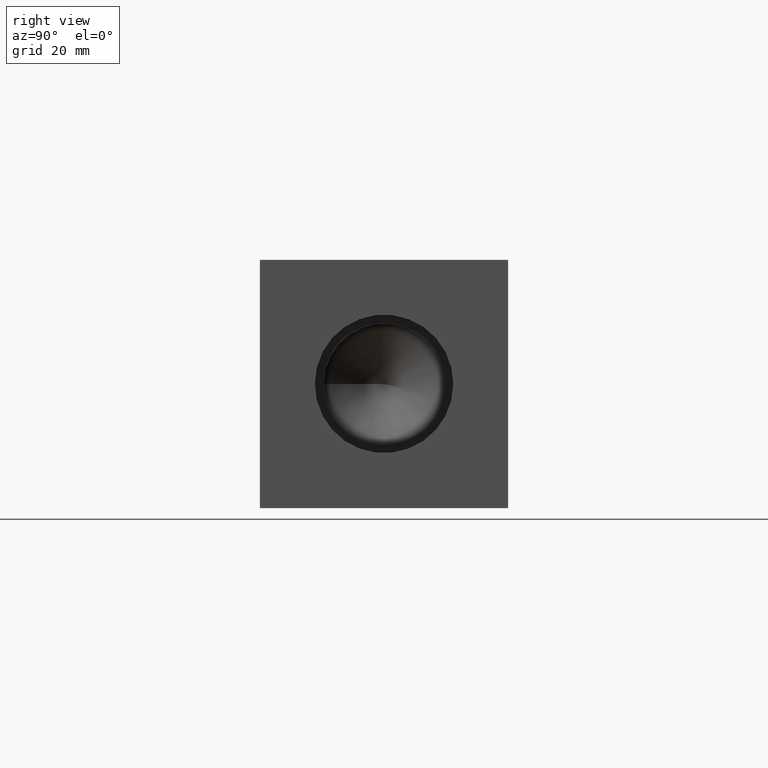
[diagram: clean part render]
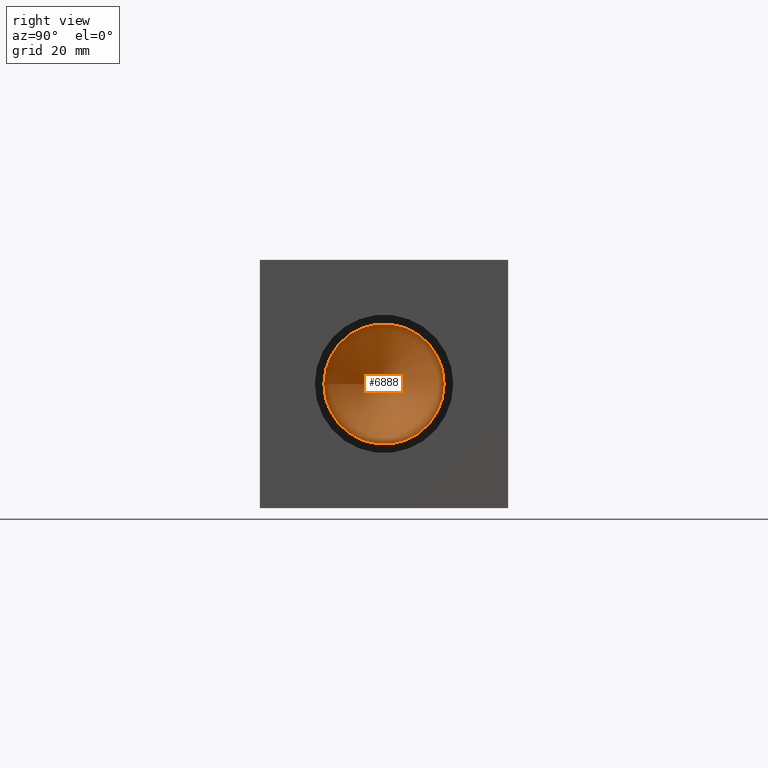
[diagram: same view with one face highlighted and labeled with its STEP entity id]
A machine part, right view. The second image highlights one B-rep face of the part: STEP entity #6888.
In plain terms, the highlighted conical surface has half-angle 60 deg.
Its self-contained STEP definition (entity closure, byte-faithful):
#42=CONICAL_SURFACE('',#7157,9.22655,1.0471975511966);
#56=CIRCLE('',#7158,18.4531);
#57=CIRCLE('',#7159,18.4531);
#767=FACE_OUTER_BOUND('',#1148,.T.);
#1148=EDGE_LOOP('',(#5858,#5859,#5860,#5861));
#1851=LINE('',#11634,#2534);
#2534=VECTOR('',#8338,9.22655);
#3146=VERTEX_POINT('',#11630);
#3147=VERTEX_POINT('',#11631);
#3148=VERTEX_POINT('',#11633);
#4067=EDGE_CURVE('',#3146,#3147,#56,.T.);
#4068=EDGE_CURVE('',#3147,#3148,#1851,.T.);
#4069=EDGE_CURVE('',#3147,#3146,#57,.T.);
#5858=ORIENTED_EDGE('',*,*,#4067,.T.);
#5859=ORIENTED_EDGE('',*,*,#4068,.T.);
#5860=ORIENTED_EDGE('',*,*,#4068,.F.);
#5861=ORIENTED_EDGE('',*,*,#4069,.T.);
#6888=ADVANCED_FACE('',(#767),#42,.F.);
#7157=AXIS2_PLACEMENT_3D('',#11629,#8334,#8335);
#7158=AXIS2_PLACEMENT_3D('',#11632,#8336,#8337);
#7159=AXIS2_PLACEMENT_3D('',#11635,#8339,#8340);
#8334=DIRECTION('center_axis',(1.,0.,0.));
#8335=DIRECTION('ref_axis',(0.,1.,0.));
#8336=DIRECTION('center_axis',(1.,0.,0.));
#8337=DIRECTION('ref_axis',(0.,1.,0.));
#8338=DIRECTION('',(-0.5,0.866025403784439,1.06057523872491E-16));
#8339=DIRECTION('center_axis',(1.,0.,0.));
#8340=DIRECTION('ref_axis',(0.,1.,0.));
#11629=CARTESIAN_POINT('Origin',(170.950458873808,38.1,38.1));
#11630=CARTESIAN_POINT('',(176.27741,56.5531,38.1));
#11631=CARTESIAN_POINT('',(176.27741,19.6469,38.1));
#11632=CARTESIAN_POINT('Origin',(176.27741,38.1,38.1));
#11633=CARTESIAN_POINT('',(165.623507747617,38.1,38.1));
#11634=CARTESIAN_POINT('',(170.950458873808,28.87345,38.1));
#11635=CARTESIAN_POINT('Origin',(176.27741,38.1,38.1));